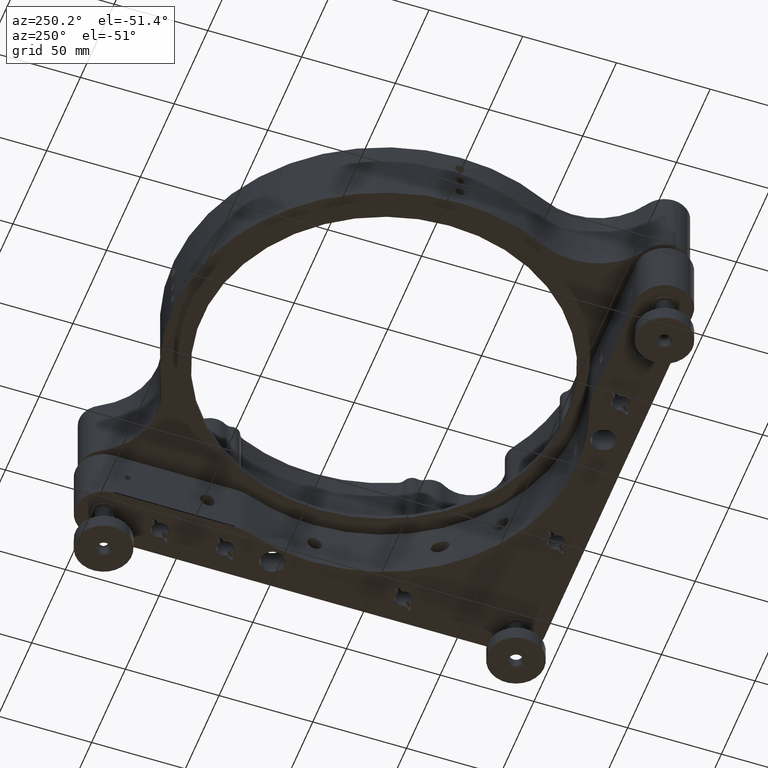
[diagram: clean part render]
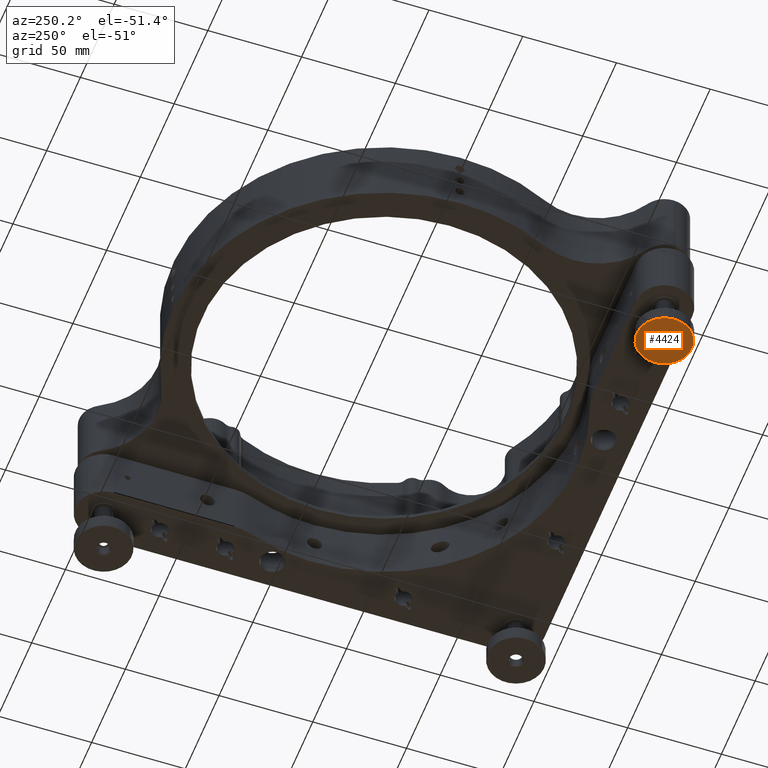
[diagram: same view with one face highlighted and labeled with its STEP entity id]
A machine part, auxiliary view. The second image highlights one B-rep face of the part: STEP entity #4424.
In plain terms, the highlighted planar face has unit normal (-0, -0, 1).
Its self-contained STEP definition (entity closure, byte-faithful):
#154 = EDGE_LOOP ( 'NONE', ( #6899, #8889 ) ) ;
#480 = CARTESIAN_POINT ( 'NONE',  ( -247.7471478769003568, 22.42109971664835300, -41.25370849898472159 ) ) ;
#595 = EDGE_CURVE ( 'NONE', #5086, #13621, #12219, .T. ) ;
#712 = DIRECTION ( 'NONE',  ( -1.020631077792300407E-49, -1.498291584281290616E-64, 1.000000000000000000 ) ) ;
#717 = CARTESIAN_POINT ( 'NONE',  ( -234.9999999999998579, 14.99999999999999645, -41.25370849898472159 ) ) ;
#1441 = AXIS2_PLACEMENT_3D ( 'NONE', #11705, #712, #6315 ) ;
#1567 = FACE_BOUND ( 'NONE', #154, .T. ) ;
#2361 = DIRECTION ( 'NONE',  ( -1.020631077792278567E-49, -1.414839594118210013E-63, 1.000000000000000000 ) ) ;
#3040 = DIRECTION ( 'NONE',  ( 0.8642134153830712817, -0.5031254045185229451, 0.000000000000000000 ) ) ;
#3365 = CIRCLE ( 'NONE', #9323, 14.75000000000027178 ) ;
#3655 = FACE_OUTER_BOUND ( 'NONE', #5263, .T. ) ;
#3788 = CIRCLE ( 'NONE', #7681, 14.75000000000025935 ) ;
#4018 = DIRECTION ( 'NONE',  ( 0.8642134153830713927, -0.5031254045185225010, 0.000000000000000000 ) ) ;
#4247 = AXIS2_PLACEMENT_3D ( 'NONE', #4584, #2361, #8973 ) ;
#4424 = ADVANCED_FACE ( 'NONE', ( #1567, #3655 ), #10328, .F. ) ;
#4584 = CARTESIAN_POINT ( 'NONE',  ( -234.9999999999998579, 14.99999999999999645, -41.25370849898472159 ) ) ;
#5086 = VERTEX_POINT ( 'NONE', #6594 ) ;
#5263 = EDGE_LOOP ( 'NONE', ( #9815, #10930 ) ) ;
#5563 = CARTESIAN_POINT ( 'NONE',  ( -238.4568536615321932, 17.01250161807411843, -41.25370849898472159 ) ) ;
#5651 = EDGE_CURVE ( 'NONE', #13143, #12747, #3788, .T. ) ;
#5989 = EDGE_CURVE ( 'NONE', #12747, #13143, #3365, .T. ) ;
#6315 = DIRECTION ( 'NONE',  ( 0.8642134153830712817, -0.5031254045185229451, 0.000000000000000000 ) ) ;
#6341 = DIRECTION ( 'NONE',  ( -1.020631077792300407E-49, -1.498291584281290616E-64, 1.000000000000000000 ) ) ;
#6594 = CARTESIAN_POINT ( 'NONE',  ( -231.5431463384675226, 12.98749838192587269, -41.25370849898472159 ) ) ;
#6899 = ORIENTED_EDGE ( 'NONE', *, *, #7067, .T. ) ;
#7067 = EDGE_CURVE ( 'NONE', #13621, #5086, #13948, .T. ) ;
#7415 = CARTESIAN_POINT ( 'NONE',  ( -234.9999999999998579, 14.99999999999999645, -41.25370849898472159 ) ) ;
#7681 = AXIS2_PLACEMENT_3D ( 'NONE', #9434, #9234, #8230 ) ;
#8230 = DIRECTION ( 'NONE',  ( 0.8642134153830702825, -0.5031254045185244994, 0.000000000000000000 ) ) ;
#8889 = ORIENTED_EDGE ( 'NONE', *, *, #595, .T. ) ;
#8973 = DIRECTION ( 'NONE',  ( 0.8642134153830709486, -0.5031254045185232782, 8.820430695849627547E-50 ) ) ;
#9234 = DIRECTION ( 'NONE',  ( 1.020631077792300407E-49, 1.498291584281290616E-64, -1.000000000000000000 ) ) ;
#9323 = AXIS2_PLACEMENT_3D ( 'NONE', #717, #10556, #4018 ) ;
#9409 = CARTESIAN_POINT ( 'NONE',  ( -222.2528521230993306, 7.578900283351641676, -41.25370849898472159 ) ) ;
#9434 = CARTESIAN_POINT ( 'NONE',  ( -234.9999999999998579, 14.99999999999999645, -41.25370849898472159 ) ) ;
#9815 = ORIENTED_EDGE ( 'NONE', *, *, #5651, .T. ) ;
#10328 = PLANE ( 'NONE',  #4247 ) ;
#10556 = DIRECTION ( 'NONE',  ( 1.020631077792300407E-49, 1.498291584281290616E-64, -1.000000000000000000 ) ) ;
#10930 = ORIENTED_EDGE ( 'NONE', *, *, #5989, .T. ) ;
#11705 = CARTESIAN_POINT ( 'NONE',  ( -234.9999999999998579, 14.99999999999999645, -41.25370849898472159 ) ) ;
#12219 = CIRCLE ( 'NONE', #1441, 4.000000000000062172 ) ;
#12747 = VERTEX_POINT ( 'NONE', #480 ) ;
#13143 = VERTEX_POINT ( 'NONE', #9409 ) ;
#13501 = AXIS2_PLACEMENT_3D ( 'NONE', #7415, #6341, #3040 ) ;
#13621 = VERTEX_POINT ( 'NONE', #5563 ) ;
#13948 = CIRCLE ( 'NONE', #13501, 4.000000000000062172 ) ;